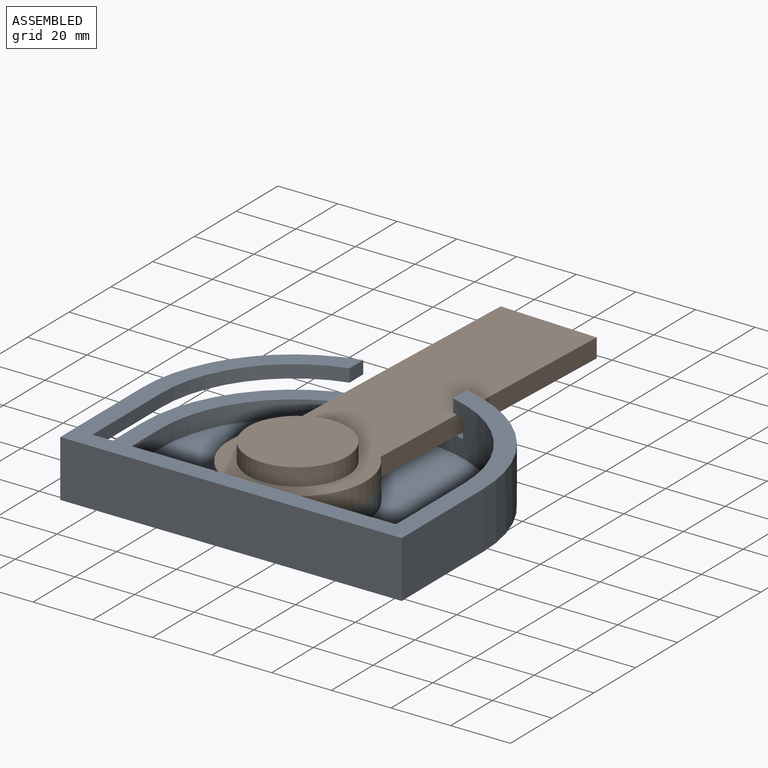
[diagram: assembled view]
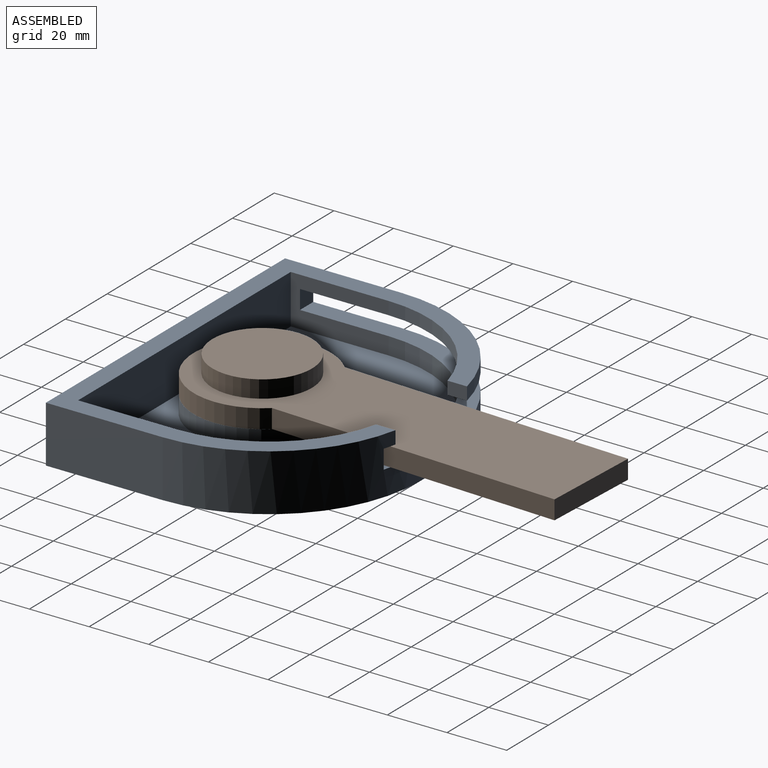
[diagram: assembled view, second angle]
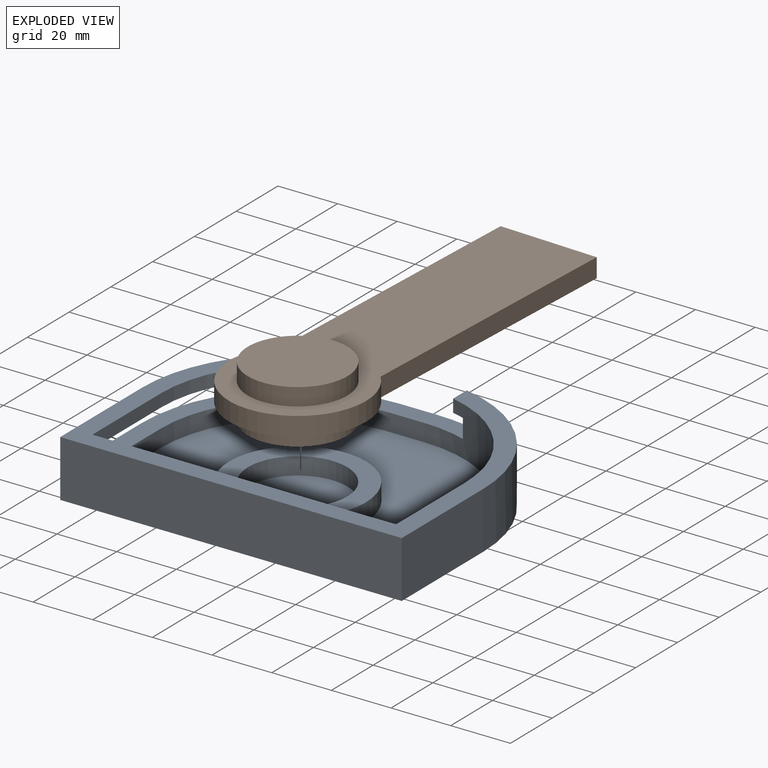
[diagram: exploded view]
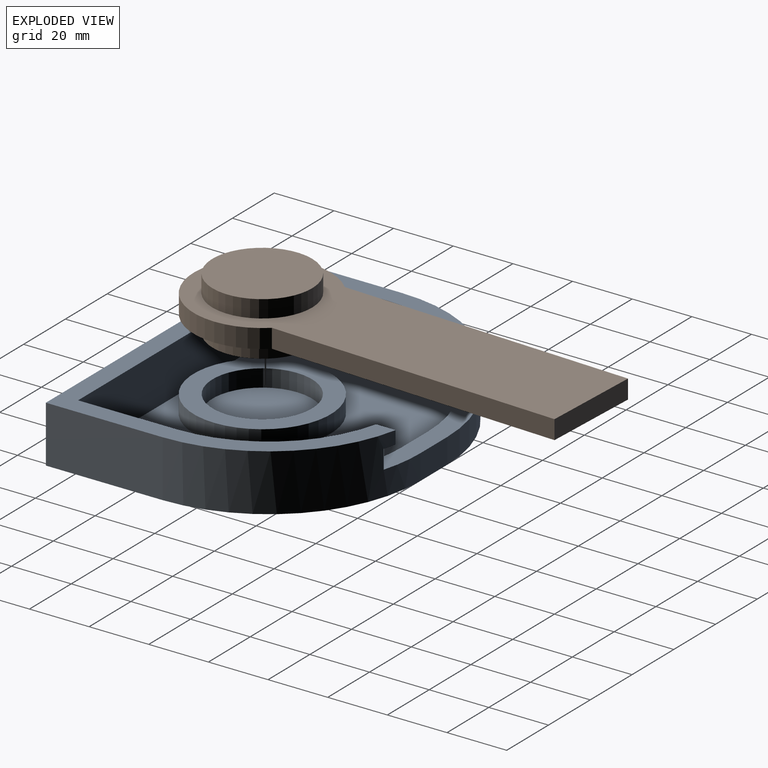
[diagram: exploded view, second angle]
ASSEMBLY  parts=2 mates=2
PART A: 28 faces, bbox 114.5x89.9x19.1 mm
  f0: cylinder r=50.8mm len=49.53mm, axis (0,0,-1), area 295.4mm2, adj f1,f3,f8,f23
  f1: plane 114.5x88.87mm, normal (0,0,1), area 1954.8mm2, adj f0,f2,f8,f9,f10,f11,f13,f14
  f2: cylinder r=44.45mm len=42.99mm, axis (0,0,1), area 252.2mm2, adj f1,f3,f13,f23
  f3: plane 79.21x39.5mm, normal (0,0,-1), area 591.1mm2, adj f0,f2,f8,f13,f18,f23
  f4: plane 12.9x8.38mm, normal (0,1,0), area 108.1mm2, adj f5,f11,f12,f21
  f5: cylinder r=50.8mm len=50.8mm, axis (0,0,-1), area 668.9mm2, adj f4,f8,f12,f21
  f6: plane 12.9x5.84mm, normal (0,-1,0), area 75.4mm2, adj f7,f16,f17,f21
  f7: cylinder r=44.45mm len=44.45mm, axis (0,0,1), area 407.9mm2, adj f6,f13,f17,f21
  f8: plane 39.14x19.05mm, normal (-1,0,0), area 557.1mm2, adj f0,f1,f3,f5,f9,f12,f18,f21
  f9: plane 114.5x19.05mm, normal (0,-1,0), area 2181.2mm2, adj f1,f8,f10,f12
  f10: plane 39.14x19.05mm, normal (1,0,0), area 745.6mm2, adj f1,f9,f11,f12
  f11: cylinder r=50.8mm len=50.8mm, axis (0,0,-1), area 1381.9mm2, adj f1,f4,f10,f12,f19,f20,f21,f22
  f12: plane 114.5x89.94mm, normal (0,0,-1), area 9190.2mm2, adj f4,f5,f8,f9,f10,f11
  f13: plane 32.79x16.51mm, normal (1,0,0), area 352.8mm2, adj f1,f2,f3,f7,f14,f17,f18,f21
  f14: plane 101.8x16.51mm, normal (0,1,0), area 1680.7mm2, adj f1,f13,f15,f17
  f15: plane 32.79x16.51mm, normal (-1,0,0), area 541.3mm2, adj f1,f14,f16,f17
  f16: cylinder r=44.45mm len=44.45mm, axis (0,0,1), area 1014mm2, adj f1,f6,f15,f17,f19,f20,f21,f22
  f17: plane 101.8x77.24mm, normal (0,0,1), area 5354.1mm2, adj f6,f7,f13,f14,f15,f16,f25
  f18: plane 6.35x6.35mm, normal (0,1,0), area 40.3mm2, adj f3,f8,f13,f21
  f19: plane 6.67x6.35mm, normal (-1,0,0), area 42.3mm2, adj f11,f16,f20,f21
  f20: plane 7.71x4.12mm, normal (0,0,-1), area 27.1mm2, adj f11,f16,f19,f22
  f21: plane 80.48x78.18mm, normal (0,0,1), area 838.9mm2, adj f4,f5,f6,f7,f8,f11,f13,f16
  f22: plane 6.51x4.32mm, normal (-1,0,0), area 28.1mm2, adj f1,f11,f16,f20
  f23: plane 6.54x4.32mm, normal (1,0,0), area 28.2mm2, adj f0,f1,f2,f3
  f24: cylinder r=16.66mm len=33.33mm, axis (0,0,-1), area 611.7mm2, adj f26,f27
  f25: cylinder r=22.99mm len=45.98mm, axis (0,0,-1), area 843.9mm2, adj f17,f26
  f26: plane 45.98x45.98mm, normal (0,0,1), area 788.2mm2, adj f24,f25
  f27: plane 33.33x33.33mm, normal (0,0,1), area 872.5mm2, adj f24
PART B: 10 faces, bbox 45.9x136.6x18 mm
  f0: cylinder r=16.72mm len=33.45mm, axis (0,0,-1), area 613.9mm2, adj f1,f7
  f1: plane 33.45x33.45mm, normal (0,0,-1), area 878.7mm2, adj f0
  f2: plane 97.93x6.35mm, normal (-1,0,0), area 621.8mm2, adj f3,f5,f6,f7
  f3: cylinder r=22.95mm len=45.9mm, axis (0,0,-1), area 679.7mm2, adj f2,f4,f6,f7
  f4: plane 97.7x6.35mm, normal (1,0,0), area 620.4mm2, adj f3,f5,f6,f7
  f5: plane 33.23x6.35mm, normal (0,1,0), area 211mm2, adj f2,f4,f6,f7
  f6: plane 136.59x45.9mm, normal (0,0,1), area 3862.7mm2, adj f2,f3,f4,f5,f8
  f7: plane 136.59x45.9mm, normal (0,0,-1), area 3862.7mm2, adj f0,f2,f3,f4,f5
  f8: cylinder r=16.72mm len=33.45mm, axis (0,0,-1), area 613.9mm2, adj f6,f9
  f9: plane 33.45x33.45mm, normal (0,0,1), area 878.7mm2, adj f8
PLACE A t=(-131.53,5.99,39.8)mm
PLACE B rot(axis=(0,0,-1),2.4deg) t=(-131.53,5.99,9.58)mm
MATE cylindrical B.f0 <-> A.f24  axis (0,0,-1) through (-131.53,5.99,12.5)mm
MATE revolute B.f0 <-> A.f24  axis (0,0,-1) through (-131.53,5.99,9.58)mm
